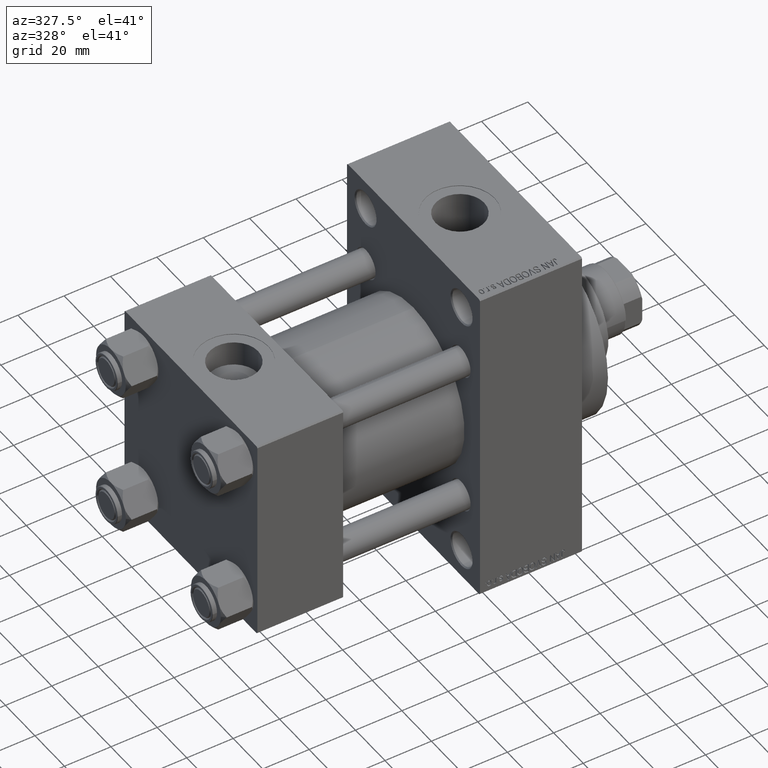
[diagram: clean part render]
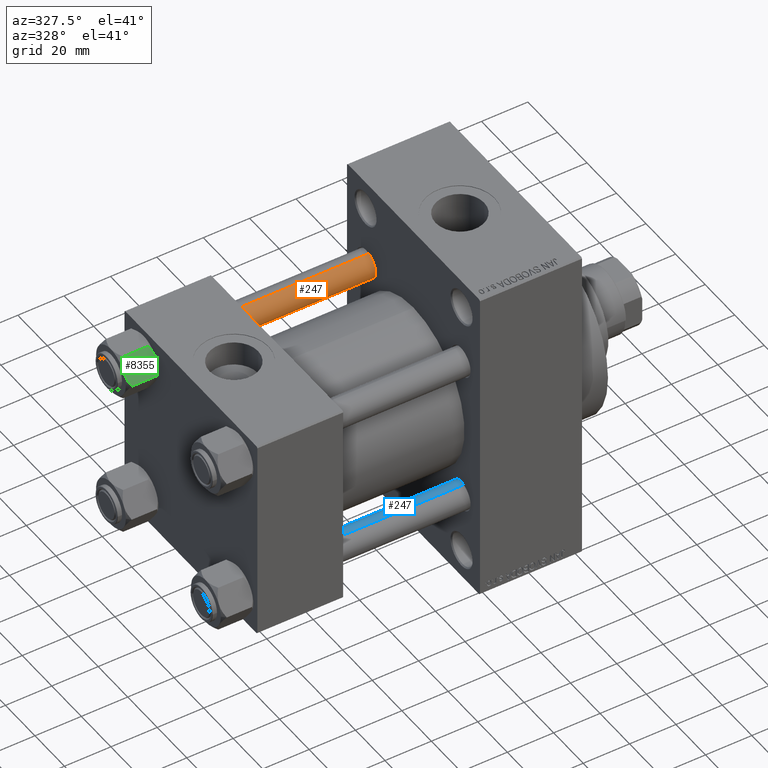
[diagram: same view with three faces highlighted in distinct colors, each labeled with its STEP entity id]
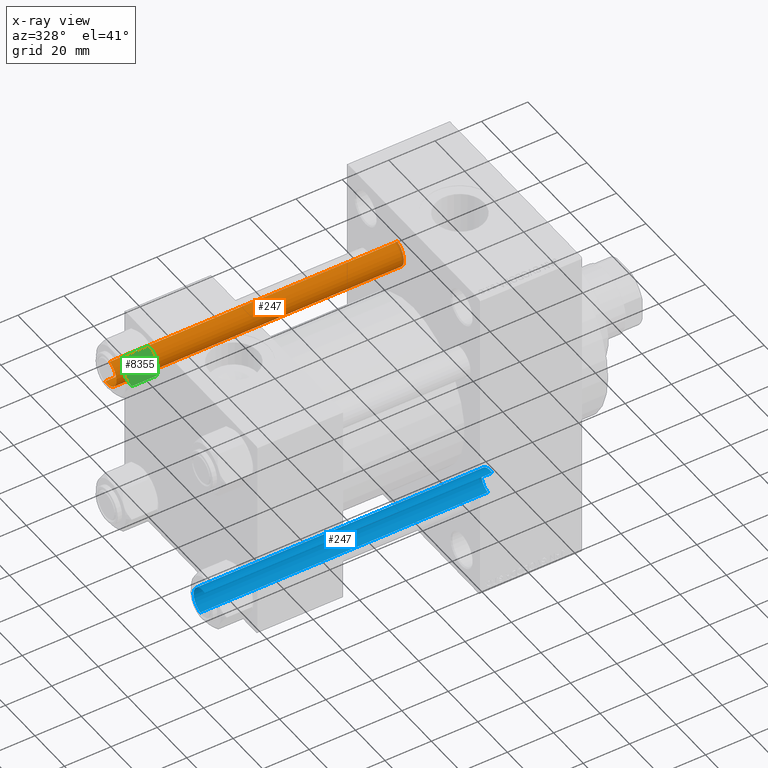
[diagram: x-ray of the same camera — body ghosted, the three highlighted faces saturated]
A machine part, auxiliary view with three faces highlighted in distinct colors.
The next image is the same camera in x-ray (body ghosted, the three faces saturated) — at least one of them is partly hidden behind the body in this view.
Their STEP definitions:

[orange] entity #247 — the highlighted cylindrical surface (edge-blend (fillet) strip) has radius 6 mm, axis along (-1, -0, 0).
#247 = ADVANCED_FACE ( 'NONE', ( #25543 ), #40646, .T. ) ;
#3218 = DIRECTION ( 'NONE',  ( 1.000000000000000000, 0.000000000000000000, 0.000000000000000000 ) ) ;
#6735 = CARTESIAN_POINT ( 'NONE',  ( 0.000000000000000000, 0.000000000000000000, 125.0000000000000000 ) ) ;
#8061 = VECTOR ( 'NONE', #28203, 1000.000000000000000 ) ;
#9113 = CARTESIAN_POINT ( 'NONE',  ( 0.000000000000000000, 0.000000000000000000, 124.5000000000000000 ) ) ;
#9333 = DIRECTION ( 'NONE',  ( -0.000000000000000000, -0.000000000000000000, -1.000000000000000000 ) ) ;
#9518 = EDGE_CURVE ( 'NONE', #23356, #45905, #21673, .T. ) ;
#10412 = DIRECTION ( 'NONE',  ( -0.000000000000000000, -0.000000000000000000, 1.000000000000000000 ) ) ;
#11613 = ORIENTED_EDGE ( 'NONE', *, *, #13080, .T. ) ;
#13080 = EDGE_CURVE ( 'NONE', #27298, #48665, #36265, .T. ) ;
#16810 = LINE ( 'NONE', #32660, #8061 ) ;
#17750 = CARTESIAN_POINT ( 'NONE',  ( -6.000000000000000888, 0.000000000000000000, 125.0000000000000000 ) ) ;
#18490 = CARTESIAN_POINT ( 'NONE',  ( 6.000000000000000888, 7.347880794884120722E-16, 124.5000000000000000 ) ) ;
#20080 = CARTESIAN_POINT ( 'NONE',  ( -6.000000000000000888, 0.000000000000000000, 124.5000000000000000 ) ) ;
#20843 = AXIS2_PLACEMENT_3D ( 'NONE', #44314, #10412, #3218 ) ;
#21673 = CIRCLE ( 'NONE', #20843, 6.000000000000000888 ) ;
#21711 = EDGE_CURVE ( 'NONE', #48665, #23356, #40024, .T. ) ;
#21842 = DIRECTION ( 'NONE',  ( -0.000000000000000000, -0.000000000000000000, -1.000000000000000000 ) ) ;
#23356 = VERTEX_POINT ( 'NONE', #44840 ) ;
#24598 = EDGE_CURVE ( 'NONE', #27298, #45905, #16810, .T. ) ;
#25543 = FACE_OUTER_BOUND ( 'NONE', #48908, .T. ) ;
#27298 = VERTEX_POINT ( 'NONE', #18490 ) ;
#27823 = ORIENTED_EDGE ( 'NONE', *, *, #24598, .F. ) ;
#28176 = DIRECTION ( 'NONE',  ( 0.000000000000000000, 0.000000000000000000, -1.000000000000000000 ) ) ;
#28203 = DIRECTION ( 'NONE',  ( -0.000000000000000000, -0.000000000000000000, -1.000000000000000000 ) ) ;
#30117 = ORIENTED_EDGE ( 'NONE', *, *, #9518, .T. ) ;
#32660 = CARTESIAN_POINT ( 'NONE',  ( 6.000000000000000888, 7.347880794884120722E-16, 125.0000000000000000 ) ) ;
#34888 = VECTOR ( 'NONE', #9333, 1000.000000000000000 ) ;
#36265 = CIRCLE ( 'NONE', #41812, 6.000000000000000888 ) ;
#36936 = DIRECTION ( 'NONE',  ( -1.000000000000000000, 0.000000000000000000, 0.000000000000000000 ) ) ;
#40024 = LINE ( 'NONE', #17750, #34888 ) ;
#40307 = AXIS2_PLACEMENT_3D ( 'NONE', #6735, #21842, #36936 ) ;
#40646 = CYLINDRICAL_SURFACE ( 'NONE', #40307, 6.000000000000000888 ) ;
#41646 = ORIENTED_EDGE ( 'NONE', *, *, #21711, .T. ) ;
#41812 = AXIS2_PLACEMENT_3D ( 'NONE', #9113, #28176, #43260 ) ;
#43260 = DIRECTION ( 'NONE',  ( 1.000000000000000000, 0.000000000000000000, 0.000000000000000000 ) ) ;
#43566 = CARTESIAN_POINT ( 'NONE',  ( 6.000000000000000888, 7.347880794884120722E-16, 0.4999999999999865663 ) ) ;
#44314 = CARTESIAN_POINT ( 'NONE',  ( 0.000000000000000000, 0.000000000000000000, 0.4999999999999865663 ) ) ;
#44840 = CARTESIAN_POINT ( 'NONE',  ( -6.000000000000000888, 0.000000000000000000, 0.4999999999999865663 ) ) ;
#45905 = VERTEX_POINT ( 'NONE', #43566 ) ;
#48665 = VERTEX_POINT ( 'NONE', #20080 ) ;
#48908 = EDGE_LOOP ( 'NONE', ( #27823, #11613, #41646, #30117 ) ) ;

[blue] entity #247 — the highlighted cylindrical surface (edge-blend (fillet) strip) has radius 6 mm, axis along (-1, 0, 0).
#247 = ADVANCED_FACE ( 'NONE', ( #25543 ), #40646, .T. ) ;
#3218 = DIRECTION ( 'NONE',  ( 1.000000000000000000, 0.000000000000000000, 0.000000000000000000 ) ) ;
#6735 = CARTESIAN_POINT ( 'NONE',  ( 0.000000000000000000, 0.000000000000000000, 125.0000000000000000 ) ) ;
#8061 = VECTOR ( 'NONE', #28203, 1000.000000000000000 ) ;
#9113 = CARTESIAN_POINT ( 'NONE',  ( 0.000000000000000000, 0.000000000000000000, 124.5000000000000000 ) ) ;
#9333 = DIRECTION ( 'NONE',  ( -0.000000000000000000, -0.000000000000000000, -1.000000000000000000 ) ) ;
#9518 = EDGE_CURVE ( 'NONE', #23356, #45905, #21673, .T. ) ;
#10412 = DIRECTION ( 'NONE',  ( -0.000000000000000000, -0.000000000000000000, 1.000000000000000000 ) ) ;
#11613 = ORIENTED_EDGE ( 'NONE', *, *, #13080, .T. ) ;
#13080 = EDGE_CURVE ( 'NONE', #27298, #48665, #36265, .T. ) ;
#16810 = LINE ( 'NONE', #32660, #8061 ) ;
#17750 = CARTESIAN_POINT ( 'NONE',  ( -6.000000000000000888, 0.000000000000000000, 125.0000000000000000 ) ) ;
#18490 = CARTESIAN_POINT ( 'NONE',  ( 6.000000000000000888, 7.347880794884120722E-16, 124.5000000000000000 ) ) ;
#20080 = CARTESIAN_POINT ( 'NONE',  ( -6.000000000000000888, 0.000000000000000000, 124.5000000000000000 ) ) ;
#20843 = AXIS2_PLACEMENT_3D ( 'NONE', #44314, #10412, #3218 ) ;
#21673 = CIRCLE ( 'NONE', #20843, 6.000000000000000888 ) ;
#21711 = EDGE_CURVE ( 'NONE', #48665, #23356, #40024, .T. ) ;
#21842 = DIRECTION ( 'NONE',  ( -0.000000000000000000, -0.000000000000000000, -1.000000000000000000 ) ) ;
#23356 = VERTEX_POINT ( 'NONE', #44840 ) ;
#24598 = EDGE_CURVE ( 'NONE', #27298, #45905, #16810, .T. ) ;
#25543 = FACE_OUTER_BOUND ( 'NONE', #48908, .T. ) ;
#27298 = VERTEX_POINT ( 'NONE', #18490 ) ;
#27823 = ORIENTED_EDGE ( 'NONE', *, *, #24598, .F. ) ;
#28176 = DIRECTION ( 'NONE',  ( 0.000000000000000000, 0.000000000000000000, -1.000000000000000000 ) ) ;
#28203 = DIRECTION ( 'NONE',  ( -0.000000000000000000, -0.000000000000000000, -1.000000000000000000 ) ) ;
#30117 = ORIENTED_EDGE ( 'NONE', *, *, #9518, .T. ) ;
#32660 = CARTESIAN_POINT ( 'NONE',  ( 6.000000000000000888, 7.347880794884120722E-16, 125.0000000000000000 ) ) ;
#34888 = VECTOR ( 'NONE', #9333, 1000.000000000000000 ) ;
#36265 = CIRCLE ( 'NONE', #41812, 6.000000000000000888 ) ;
#36936 = DIRECTION ( 'NONE',  ( -1.000000000000000000, 0.000000000000000000, 0.000000000000000000 ) ) ;
#40024 = LINE ( 'NONE', #17750, #34888 ) ;
#40307 = AXIS2_PLACEMENT_3D ( 'NONE', #6735, #21842, #36936 ) ;
#40646 = CYLINDRICAL_SURFACE ( 'NONE', #40307, 6.000000000000000888 ) ;
#41646 = ORIENTED_EDGE ( 'NONE', *, *, #21711, .T. ) ;
#41812 = AXIS2_PLACEMENT_3D ( 'NONE', #9113, #28176, #43260 ) ;
#43260 = DIRECTION ( 'NONE',  ( 1.000000000000000000, 0.000000000000000000, 0.000000000000000000 ) ) ;
#43566 = CARTESIAN_POINT ( 'NONE',  ( 6.000000000000000888, 7.347880794884120722E-16, 0.4999999999999865663 ) ) ;
#44314 = CARTESIAN_POINT ( 'NONE',  ( 0.000000000000000000, 0.000000000000000000, 0.4999999999999865663 ) ) ;
#44840 = CARTESIAN_POINT ( 'NONE',  ( -6.000000000000000888, 0.000000000000000000, 0.4999999999999865663 ) ) ;
#45905 = VERTEX_POINT ( 'NONE', #43566 ) ;
#48665 = VERTEX_POINT ( 'NONE', #20080 ) ;
#48908 = EDGE_LOOP ( 'NONE', ( #27823, #11613, #41646, #30117 ) ) ;

[green] entity #8355 — the highlighted planar face has unit normal (0, 0.866, -0.5).
#3268 = VECTOR ( 'NONE', #45263, 1000.000000000000000 ) ;
#3287 = CARTESIAN_POINT ( 'NONE',  ( -8.202333004087902779, -5.919572880271047666, -13.96005881939309745 ) ) ;
#3432 = LINE ( 'NONE', #18527, #3268 ) ;
#4128 = AXIS2_PLACEMENT_3D ( 'NONE', #21855, #43882, #44121 ) ;
#6393 = VECTOR ( 'NONE', #48182, 1000.000000000000000 ) ;
#6400 = CARTESIAN_POINT ( 'NONE',  ( -8.209704053696567527, -5.906805847843720869, 6.159623592433269699E-15 ) ) ;
#6409 = EDGE_LOOP ( 'NONE', ( #39232, #9749, #17355, #9069, #48454, #40867 ) ) ;
#6593 = EDGE_CURVE ( 'NONE', #44857, #31636, #3432, .T. ) ;
#6623 = LINE ( 'NONE', #32622, #6393 ) ;
#8355 = ADVANCED_FACE ( 'NONE', ( #22334 ), #37439, .F. ) ;
#9069 = ORIENTED_EDGE ( 'NONE', *, *, #22073, .F. ) ;
#9547 = VERTEX_POINT ( 'NONE', #25988 ) ;
#9749 = ORIENTED_EDGE ( 'NONE', *, *, #41647, .T. ) ;
#10115 = CARTESIAN_POINT ( 'NONE',  ( -8.715000000000006963, -5.031607595987586556, 0.000000000000000000 ) ) ;
#10958 = CARTESIAN_POINT ( 'NONE',  ( -8.460569896449619876, -5.472293462311856871, -14.00000000000000888 ) ) ;
#14353 = B_SPLINE_CURVE_WITH_KNOTS ( 'NONE', 3,
 ( #41407, #36962, #18143, #29781, #44628, #3287, #10958, #44860 ),
 .UNSPECIFIED., .F., .F.,
 ( 4, 2, 2, 4 ),
 ( 2.544312114906334931E-07, 0.003011550106433543393, 0.004517197944044570521, 0.006022845781655596781 ),
 .UNSPECIFIED. ) ;
#14746 = CARTESIAN_POINT ( 'NONE',  ( -9.220295946303428636, -4.156409344131446026, -14.00000000000000711 ) ) ;
#16094 = EDGE_CURVE ( 'NONE', #23891, #9547, #27748, .T. ) ;
#16801 = CARTESIAN_POINT ( 'NONE',  ( -6.265018354709776638, -9.275100283241451748, -1.101766453314952043 ) ) ;
#17170 = EDGE_CURVE ( 'NONE', #38806, #44857, #44218, .T. ) ;
#17355 = ORIENTED_EDGE ( 'NONE', *, *, #16094, .F. ) ;
#18143 = CARTESIAN_POINT ( 'NONE',  ( -6.731401448974989599, -8.467301068182909063, -13.28585617404753272 ) ) ;
#18153 = VERTEX_POINT ( 'NONE', #20004 ) ;
#18461 = CARTESIAN_POINT ( 'NONE',  ( -8.715000000000006963, -5.031607595987586556, -14.00000000000000000 ) ) ;
#18527 = CARTESIAN_POINT ( 'NONE',  ( -11.61999999999999922, 6.288644352490894150E-15, -14.00000000000000000 ) ) ;
#18704 = CARTESIAN_POINT ( 'NONE',  ( -11.61999999999999922, 6.270720075510426383E-15, -12.44321519197518988 ) ) ;
#20004 = CARTESIAN_POINT ( 'NONE',  ( -5.810000000000000497, -10.06321519197517844, -12.44321519197518633 ) ) ;
#20758 = CARTESIAN_POINT ( 'NONE',  ( -7.713000053756304375, -6.767122412062951398, -0.1545239700039803266 ) ) ;
#21855 = CARTESIAN_POINT ( 'NONE',  ( -5.810000000000000497, -10.06321519197517844, -14.00000000000000000 ) ) ;
#22073 = EDGE_CURVE ( 'NONE', #31636, #23891, #30788, .T. ) ;
#22334 = FACE_OUTER_BOUND ( 'NONE', #6409, .T. ) ;
#23891 = VERTEX_POINT ( 'NONE', #32313 ) ;
#24006 = CARTESIAN_POINT ( 'NONE',  ( -11.16445427487471420, -0.7890283410877914072, -1.101239082899528432 ) ) ;
#24229 = CARTESIAN_POINT ( 'NONE',  ( -5.810000000000000497, -10.06321519197517844, -1.556784808024813893 ) ) ;
#25988 = CARTESIAN_POINT ( 'NONE',  ( -5.810000000000000497, -10.06321519197517844, -1.556784808024813893 ) ) ;
#27730 = CARTESIAN_POINT ( 'NONE',  ( -9.227666995912100489, -4.143642311704120118, -0.03994118060690279165 ) ) ;
#27748 = B_SPLINE_CURVE_WITH_KNOTS ( 'NONE', 3,
 ( #10115, #6400, #20758, #36606, #16801, #24229 ),
 .UNSPECIFIED., .F., .F.,
 ( 4, 2, 4 ),
 ( 0.006022845781655586372, 0.009013049135303635023, 0.01200325248895168367 ),
 .UNSPECIFIED. ) ;
#27979 = CARTESIAN_POINT ( 'NONE',  ( -8.715000000000006963, -5.031607595987586556, 0.000000000000000000 ) ) ;
#29023 = CARTESIAN_POINT ( 'NONE',  ( -11.61999999999999922, 6.270720075510426383E-15, -12.44321519197518988 ) ) ;
#29781 = CARTESIAN_POINT ( 'NONE',  ( -7.455303369716809847, -7.213466161761383333, -13.69973261901326644 ) ) ;
#30788 = B_SPLINE_CURVE_WITH_KNOTS ( 'NONE', 3,
 ( #35643, #24006, #43064, #46299, #30966, #27730, #31929, #27979 ),
 .UNSPECIFIED., .F., .F.,
 ( 4, 2, 2, 4 ),
 ( 2.544312114893457383E-07, 0.003011550106433538623, 0.004517197944044561847, 0.006022845781655586372 ),
 .UNSPECIFIED. ) ;
#30966 = CARTESIAN_POINT ( 'NONE',  ( -9.729165168613654657, -3.275021996682076608, -0.1903979688073365595 ) ) ;
#31636 = VERTEX_POINT ( 'NONE', #36571 ) ;
#31929 = CARTESIAN_POINT ( 'NONE',  ( -8.969430103550386946, -4.590921729663310025, 6.662949392646161370E-15 ) ) ;
#32313 = CARTESIAN_POINT ( 'NONE',  ( -8.715000000000006963, -5.031607595987586556, 0.000000000000000000 ) ) ;
#32622 = CARTESIAN_POINT ( 'NONE',  ( -5.810000000000000497, -10.06321519197517844, -14.00000000000000000 ) ) ;
#32901 = EDGE_CURVE ( 'NONE', #18153, #38806, #14353, .T. ) ;
#34053 = CARTESIAN_POINT ( 'NONE',  ( -9.716999946243698005, -3.296092779912219939, -13.84547602999602667 ) ) ;
#35643 = CARTESIAN_POINT ( 'NONE',  ( -11.61999999999999922, 6.270720075409452187E-15, -1.556784808024810562 ) ) ;
#36571 = CARTESIAN_POINT ( 'NONE',  ( -11.61999999999999922, 6.270720075409452187E-15, -1.556784808024810562 ) ) ;
#36606 = CARTESIAN_POINT ( 'NONE',  ( -6.733375043383495573, -8.463882702393842550, -0.7114554706434480513 ) ) ;
#36962 = CARTESIAN_POINT ( 'NONE',  ( -6.265545725125283738, -9.274186850887380373, -12.89876091710046779 ) ) ;
#37439 = PLANE ( 'NONE',  #4128 ) ;
#38806 = VERTEX_POINT ( 'NONE', #46184 ) ;
#39232 = ORIENTED_EDGE ( 'NONE', *, *, #32901, .F. ) ;
#40513 = CARTESIAN_POINT ( 'NONE',  ( -11.16498164529022219, -0.7881149087337223635, -12.89823354668505040 ) ) ;
#40867 = ORIENTED_EDGE ( 'NONE', *, *, #17170, .F. ) ;
#41407 = CARTESIAN_POINT ( 'NONE',  ( -5.810000000000000497, -10.06321519197517844, -12.44321519197518633 ) ) ;
#41647 = EDGE_CURVE ( 'NONE', #18153, #9547, #6623, .T. ) ;
#43064 = CARTESIAN_POINT ( 'NONE',  ( -10.69859855102500923, -1.595914123792257611, -0.7141438259524607313 ) ) ;
#43882 = DIRECTION ( 'NONE',  ( 0.8660254037844390407, 0.4999999999999995004, 0.000000000000000000 ) ) ;
#44121 = DIRECTION ( 'NONE',  ( -0.4999999999999994449, 0.8660254037844389297, 0.000000000000000000 ) ) ;
#44218 = B_SPLINE_CURVE_WITH_KNOTS ( 'NONE', 3,
 ( #18461, #14746, #34053, #45192, #40513, #18704 ),
 .UNSPECIFIED., .F., .F.,
 ( 4, 2, 4 ),
 ( 0.006022845781655596781, 0.009013049135303641962, 0.01200325248895168714 ),
 .UNSPECIFIED. ) ;
#44628 = CARTESIAN_POINT ( 'NONE',  ( -7.700834831386346835, -6.788193195293090731, -13.80960203119266438 ) ) ;
#44857 = VERTEX_POINT ( 'NONE', #29023 ) ;
#44860 = CARTESIAN_POINT ( 'NONE',  ( -8.715000000000006963, -5.031607595987586556, -14.00000000000000000 ) ) ;
#45192 = CARTESIAN_POINT ( 'NONE',  ( -10.69662495661650148, -1.599332489581326344, -13.28854452935655317 ) ) ;
#45263 = DIRECTION ( 'NONE',  ( -0.000000000000000000, -0.000000000000000000, 1.000000000000000000 ) ) ;
#46184 = CARTESIAN_POINT ( 'NONE',  ( -8.715000000000006963, -5.031607595987586556, -14.00000000000000000 ) ) ;
#46299 = CARTESIAN_POINT ( 'NONE',  ( -9.974696630283190757, -2.849749030213787115, -0.3002673809867329457 ) ) ;
#48182 = DIRECTION ( 'NONE',  ( -0.000000000000000000, -0.000000000000000000, 1.000000000000000000 ) ) ;
#48454 = ORIENTED_EDGE ( 'NONE', *, *, #6593, .F. ) ;